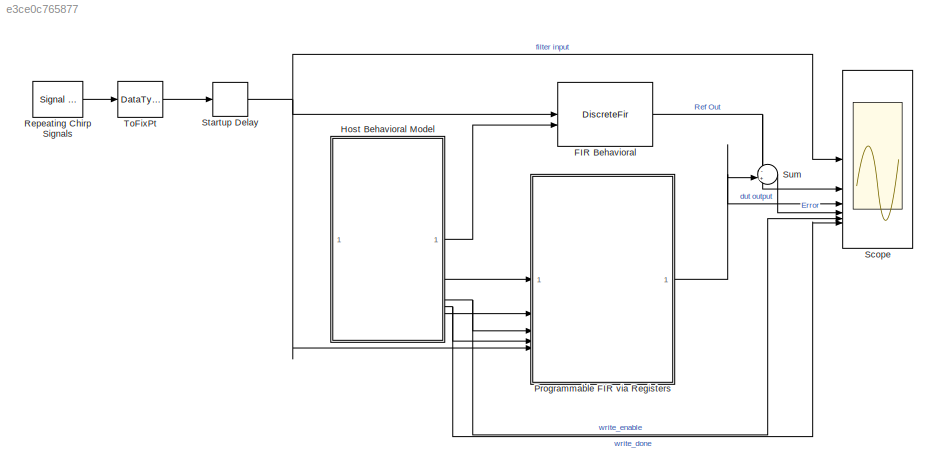
MODEL slx_e3ce0c765877
KIND model
CONFIG AbsTol = auto
CONFIG EnableMultiTasking = off
CONFIG FixedStep = auto
CONFIG MaxStep = auto
CONFIG MinStep = auto
CONFIG RelTol = 1e-3
CONFIG SampleTimeConstraint = Unconstrained
CONFIG SolverName = VariableStepAuto
CONFIG StartTime = 0.0
CONFIG StopTime = 500
BLOCK [DiscreteFir] FIR Behavioral
  AccumDataTypeStr = fixdt(1,31,29)
  CoefDataTypeStr = fixdt(1,14,13)
  CoefSource = Input port
  Coefficients = Numerator2
  InputPortMap = u0,u1
  InputProcessing = Columns as channels (frame based)
  OutDataTypeStr = fixdt(1,15,13)
  OutputPortMap = o0
  ProductDataTypeStr = fixdt(1,29,29)
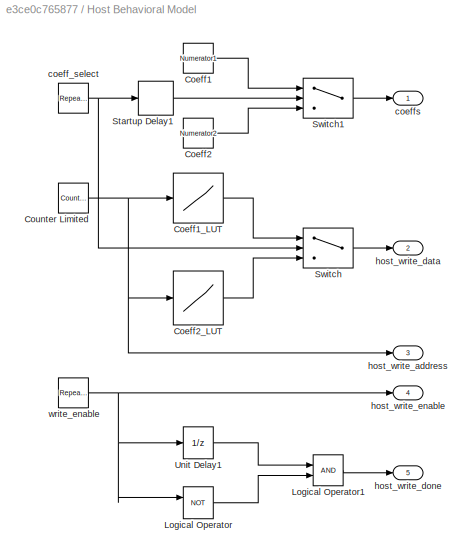
BLOCK [SubSystem] Host Behavioral Model
BLOCK [Constant] Host Behavioral Model/Coeff1
  OutDataTypeStr = fixdt(1,14,13)
  SampleTime = 1
  Value = Numerator1
BLOCK [Lookup] Host Behavioral Model/Coeff1_LUT
  InputValues = [0:NTaps-1]
  LookUpMeth = Use Input Nearest
  OutDataTypeStr = fixdt(1,14,13)
  SaturateOnIntegerOverflow = off
  Table = Numerator1
BLOCK [Constant] Host Behavioral Model/Coeff2
  OutDataTypeStr = fixdt(1,14,13)
  SampleTime = 1
  Value = Numerator2
BLOCK [Lookup] Host Behavioral Model/Coeff2_LUT
  InputValues = [0:NTaps-1]
  LookUpMeth = Use Input Nearest
  OutDataTypeStr = fixdt(1,14,13)
  SaturateOnIntegerOverflow = off
  Table = Numerator2
BLOCK [Reference] Host Behavioral Model/Counter Limited  REF=simulink/Sources/Counter
Limited
  SourceBlock = simulink/Sources/Counter\nLimited
  SourceType = Counter Limited
BLOCK [Logic] Host Behavioral Model/Logical Operator
  AllPortsSameDT = off
  Operator = NOT
  OutDataTypeStr = boolean
BLOCK [Logic] Host Behavioral Model/Logical Operator1
  AllPortsSameDT = off
  OutDataTypeStr = boolean
BLOCK [Delay] Host Behavioral Model/Startup Delay1
  DelayLength = NTaps+1
  InputPortMap = u0
  UserDataPersistent = on
BLOCK [Switch] Host Behavioral Model/Switch
  Criteria = u2 ~= 0
  InputSameDT = off
  SaturateOnIntegerOverflow = off
BLOCK [Switch] Host Behavioral Model/Switch1
  Criteria = u2 ~= 0
  InputSameDT = off
  SaturateOnIntegerOverflow = off
BLOCK [UnitDelay] Host Behavioral Model/Unit Delay1
  HasFrameUpgradeWarning = on
  SampleTime = -1
BLOCK [Reference] Host Behavioral Model/coeff_select  REF=simulink/Sources/Repeating
Sequence
Stair
  SourceBlock = simulink/Sources/Repeating\nSequence\nStair
  SourceType = Repeating Sequence Stair
BLOCK [Outport] Host Behavioral Model/coeffs
  VectorParamsAs1DForOutWhenUnconnected = off
BLOCK [Outport] Host Behavioral Model/host_write_address
  Port = 3
  VectorParamsAs1DForOutWhenUnconnected = off
BLOCK [Outport] Host Behavioral Model/host_write_data
  Port = 2
  VectorParamsAs1DForOutWhenUnconnected = off
BLOCK [Outport] Host Behavioral Model/host_write_done
  Port = 5
  VectorParamsAs1DForOutWhenUnconnected = off
BLOCK [Outport] Host Behavioral Model/host_write_enable
  OutDataTypeStr = boolean
  Port = 4
  VectorParamsAs1DForOutWhenUnconnected = off
BLOCK [Reference] Host Behavioral Model/write_enable  REF=simulink/Sources/Repeating
Sequence
Stair
  SourceBlock = simulink/Sources/Repeating\nSequence\nStair
  SourceType = Repeating Sequence Stair
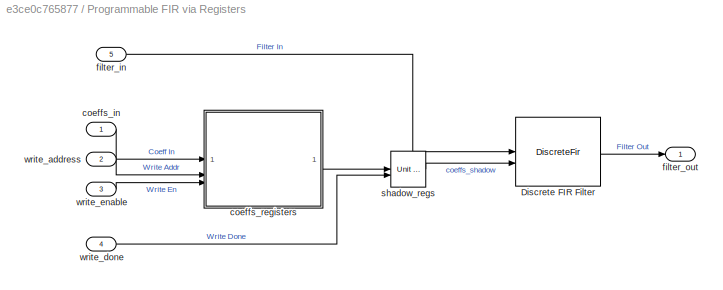
BLOCK [SubSystem] Programmable FIR via Registers
BLOCK [DiscreteFir] Programmable FIR via Registers/Discrete FIR Filter
  AccumDataTypeStr = fixdt(1,31,29)
  CoefSource = Input port
  InputPortMap = u0,u1
  InputProcessing = Columns as channels (frame based)
  OutDataTypeStr = fixdt(1,15,13)
  OutputPortMap = o0
  ProductDataTypeStr = fixdt(1,29,29)
  SaturateOnIntegerOverflow = on
BLOCK [Inport] Programmable FIR via Registers/coeffs_in
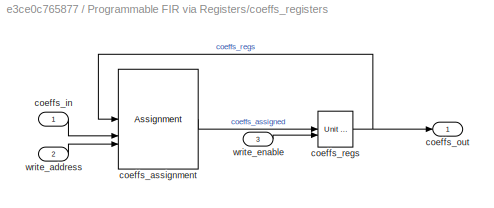
BLOCK [SubSystem] Programmable FIR via Registers/coeffs_registers
BLOCK [Assignment] Programmable FIR via Registers/coeffs_registers/coeffs_assignment
  IndexMode = Zero-based
  IndexOptions = Index vector (port)
  Indices = 1
  OutputSizes = [1 1]
BLOCK [Inport] Programmable FIR via Registers/coeffs_registers/coeffs_in
BLOCK [Outport] Programmable FIR via Registers/coeffs_registers/coeffs_out
  VectorParamsAs1DForOutWhenUnconnected = off
BLOCK [Reference] Programmable FIR via Registers/coeffs_registers/coeffs_regs  REF=simulink_need_slupdate/Unit Delay
Enabled
  SourceBlock = simulink_need_slupdate/Unit Delay\nEnabled
  SourceType = Unit Delay Enabled
BLOCK [Inport] Programmable FIR via Registers/coeffs_registers/write_address
  Port = 2
BLOCK [Inport] Programmable FIR via Registers/coeffs_registers/write_enable
  Port = 3
BLOCK [Inport] Programmable FIR via Registers/filter_in
  Port = 5
  PortDimensions = 1
BLOCK [Outport] Programmable FIR via Registers/filter_out
  VectorParamsAs1DForOutWhenUnconnected = off
BLOCK [Reference] Programmable FIR via Registers/shadow_regs  REF=simulink_need_slupdate/Unit Delay
Enabled
  SourceBlock = simulink_need_slupdate/Unit Delay\nEnabled
  SourceType = Unit Delay Enabled
BLOCK [Inport] Programmable FIR via Registers/write_address
  Port = 2
BLOCK [Inport] Programmable FIR via Registers/write_done
  Port = 4
BLOCK [Inport] Programmable FIR via Registers/write_enable
  Port = 3
BLOCK [Reference] Repeating Chirp Signals  REF=dspsrcs4/Signal From
Workspace
  SourceBlock = dspsrcs4/Signal From\nWorkspace
  SourceType = Signal From Workspace
BLOCK [Scope] Scope
  Floating = off
  NumInputPorts = 6
  ScopeSpecificationString = Simulink.scopes.TimeScopeBlockCfg('CurrentConfiguration', extmgr.ConfigurationSet(extmgr.Configuration('Core','General UI',true),extmgr.Configuration('Core','Source UI',true),extmgr.Configuration('Sources','WiredSimulink',true,'DataLoggingSaveFormat','StructureWithTime','DataLoggingDecimation','1'),extmgr.Configuration('Visuals','Time Domain',true,'SerializedDisplays',{struct('MinYLimReal','-1','M...<+5065ch>
BLOCK [Delay] Startup Delay
  DelayLength = NTaps+1
  InputPortMap = u0
  UserDataPersistent = on
BLOCK [Sum] Sum
  Inputs = -+|
BLOCK [DataTypeConversion] ToFixPt
  OutDataTypeStr = fixdt(1,14,13)
  RndMeth = Nearest
NET FIR Behavioral:1 -> Scope:2, Sum:1
LINE Host Behavioral Model/Coeff1:1 -> Host Behavioral Model/Switch1:1
LINE Host Behavioral Model/Coeff1_LUT:1 -> Host Behavioral Model/Switch:1
LINE Host Behavioral Model/Coeff2:1 -> Host Behavioral Model/Switch1:3
LINE Host Behavioral Model/Coeff2_LUT:1 -> Host Behavioral Model/Switch:3
NET Host Behavioral Model/Counter Limited:1 -> Host Behavioral Model/Coeff1_LUT:1, Host Behavioral Model/Coeff2_LUT:1, Host Behavioral Model/host_write_address:1
LINE Host Behavioral Model/Logical Operator1:1 -> Host Behavioral Model/host_write_done:1
LINE Host Behavioral Model/Logical Operator:1 -> Host Behavioral Model/Logical Operator1:2
LINE Host Behavioral Model/Startup Delay1:1 -> Host Behavioral Model/Switch1:2
LINE Host Behavioral Model/Switch1:1 -> Host Behavioral Model/coeffs:1
LINE Host Behavioral Model/Switch:1 -> Host Behavioral Model/host_write_data:1
LINE Host Behavioral Model/Unit Delay1:1 -> Host Behavioral Model/Logical Operator1:1
NET Host Behavioral Model/coeff_select:1 -> Host Behavioral Model/Startup Delay1:1, Host Behavioral Model/Switch:2
NET Host Behavioral Model/write_enable:1 -> Host Behavioral Model/Logical Operator:1, Host Behavioral Model/Unit Delay1:1, Host Behavioral Model/host_write_enable:1
LINE Host Behavioral Model:1 -> FIR Behavioral:2
LINE Host Behavioral Model:2 -> Programmable FIR via Registers:1
LINE Host Behavioral Model:3 -> Programmable FIR via Registers:2
NET Host Behavioral Model:4 -> Programmable FIR via Registers:3, Scope:5
NET Host Behavioral Model:5 -> Programmable FIR via Registers:4, Scope:6
LINE Programmable FIR via Registers/Discrete FIR Filter:1 -> Programmable FIR via Registers/filter_out:1
LINE Programmable FIR via Registers/coeffs_in:1 -> Programmable FIR via Registers/coeffs_registers:1
LINE Programmable FIR via Registers/coeffs_registers/coeffs_assignment:1 -> Programmable FIR via Registers/coeffs_registers/coeffs_regs:1
LINE Programmable FIR via Registers/coeffs_registers/coeffs_in:1 -> Programmable FIR via Registers/coeffs_registers/coeffs_assignment:2
NET Programmable FIR via Registers/coeffs_registers/coeffs_regs:1 -> Programmable FIR via Registers/coeffs_registers/coeffs_assignment:1, Programmable FIR via Registers/coeffs_registers/coeffs_out:1
LINE Programmable FIR via Registers/coeffs_registers/write_address:1 -> Programmable FIR via Registers/coeffs_registers/coeffs_assignment:3
LINE Programmable FIR via Registers/coeffs_registers/write_enable:1 -> Programmable FIR via Registers/coeffs_registers/coeffs_regs:2
LINE Programmable FIR via Registers/coeffs_registers:1 -> Programmable FIR via Registers/shadow_regs:1
LINE Programmable FIR via Registers/filter_in:1 -> Programmable FIR via Registers/Discrete FIR Filter:1
LINE Programmable FIR via Registers/shadow_regs:1 -> Programmable FIR via Registers/Discrete FIR Filter:2
LINE Programmable FIR via Registers/write_address:1 -> Programmable FIR via Registers/coeffs_registers:2
LINE Programmable FIR via Registers/write_done:1 -> Programmable FIR via Registers/shadow_regs:2
LINE Programmable FIR via Registers/write_enable:1 -> Programmable FIR via Registers/coeffs_registers:3
NET Programmable FIR via Registers:1 -> Scope:3, Sum:2
LINE Repeating Chirp Signals:1 -> ToFixPt:1
NET Startup Delay:1 -> FIR Behavioral:1, Programmable FIR via Registers:5, Scope:1
LINE Sum:1 -> Scope:4
LINE ToFixPt:1 -> Startup Delay:1
note: NET lines group one-source signal fan-out (src -> all destinations, sorted); 1:1 wires keep LINE
